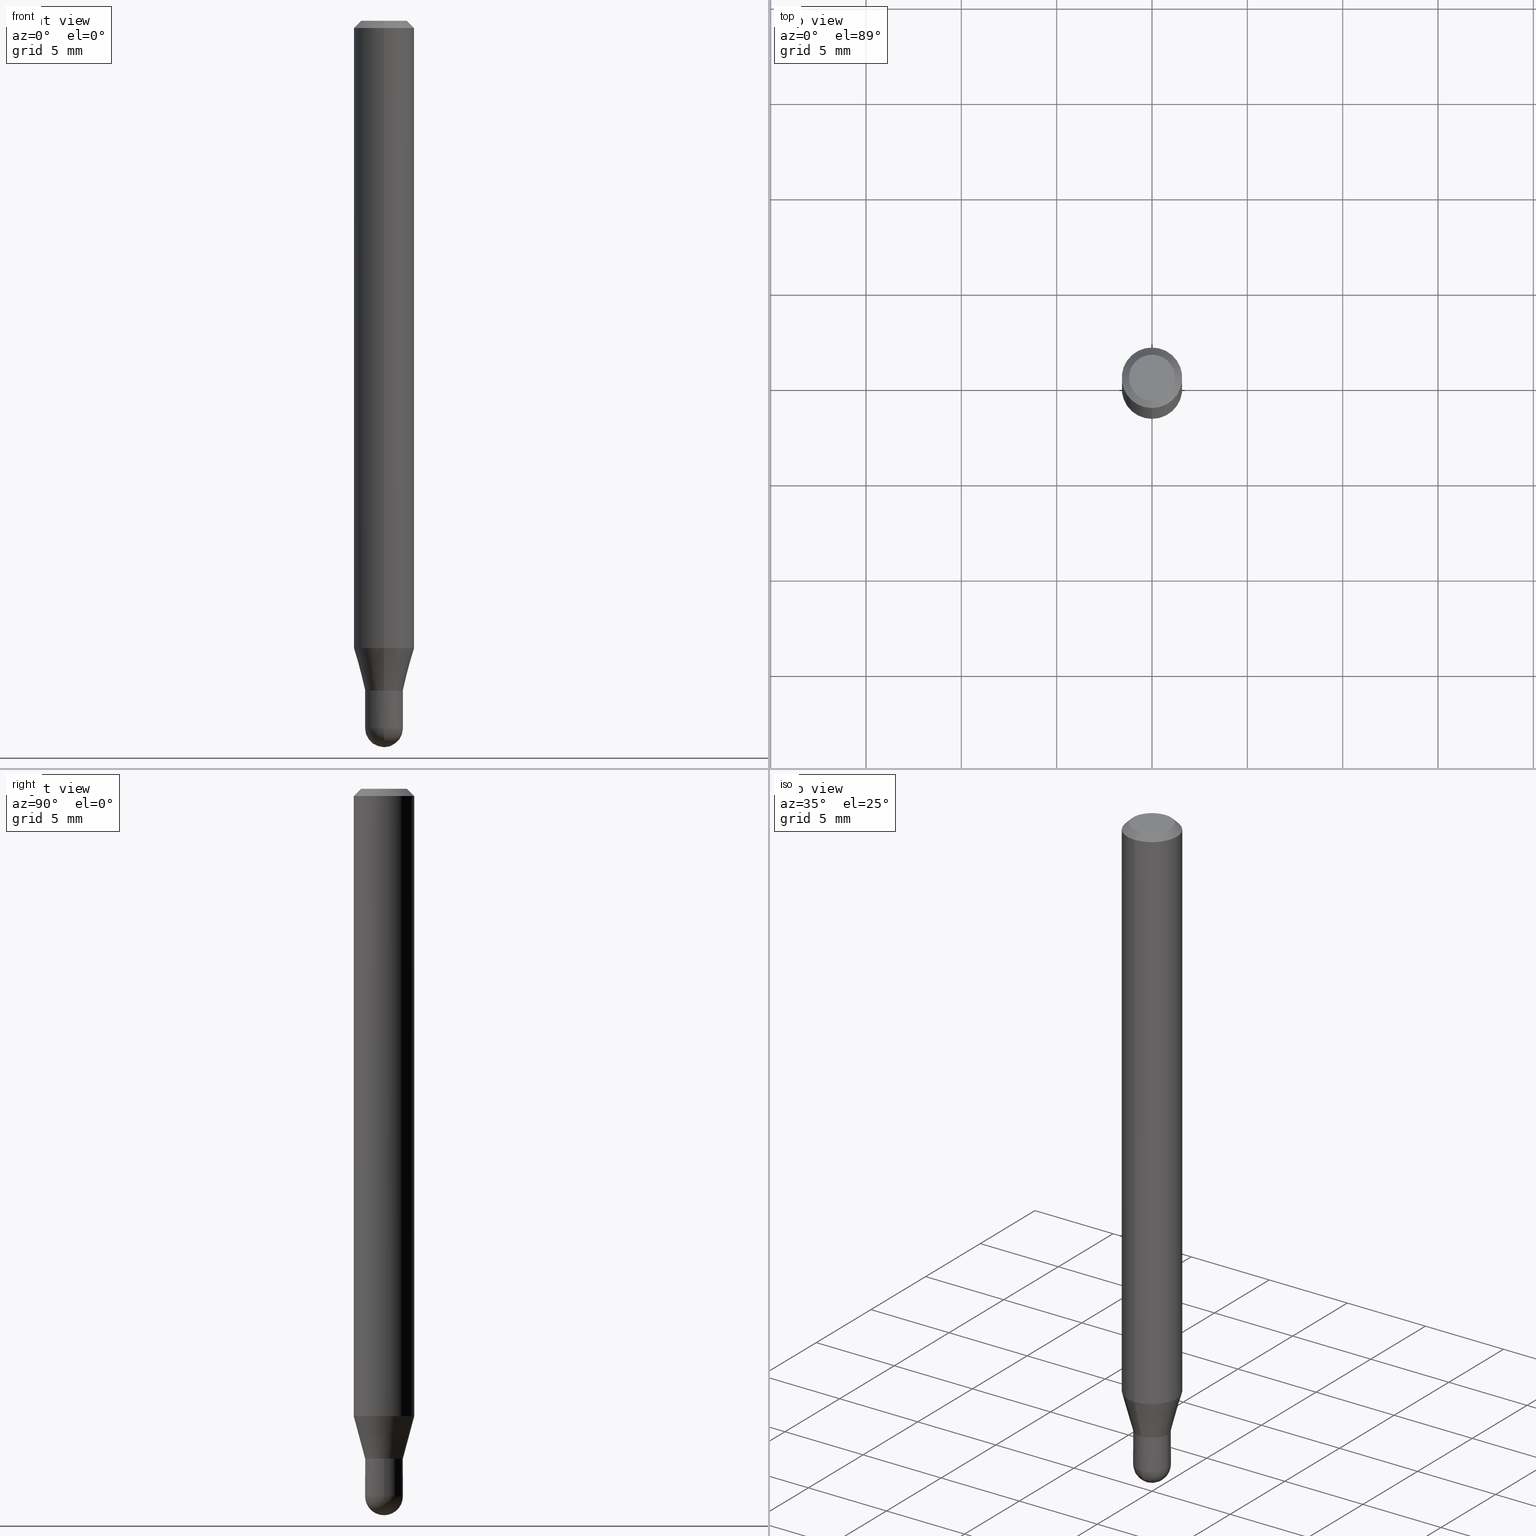
[diagram: canonical four-view strip — front | top / right | iso, engineering-drawing reading convention]
A machine part, canonical four-view strip (front | top / right | iso — engineering-drawing reading convention). The complete STEP part file that produces these views, byte-faithful:
ISO-10303-21;
HEADER;
FILE_DESCRIPTION (( 'STEP AP203' ),
    '1' );
FILE_NAME ('04377.STEP',
    '2024-03-08T18:59:59',
    ( '' ),
    ( '' ),
    'SwSTEP 2.0',
    'SolidWorks 2023',
    '' );
FILE_SCHEMA (( 'CONFIG_CONTROL_DESIGN' ));
ENDSEC;

DATA;
#1 = VERTEX_POINT ( 'NONE', #492 ) ;
#2 = FACE_OUTER_BOUND ( 'NONE', #42, .T. ) ;
#3 = ORIENTED_EDGE ( 'NONE', *, *, #65, .F. ) ;
#4 = FACE_OUTER_BOUND ( 'NONE', #135, .T. ) ;
#5 = EDGE_LOOP ( 'NONE', ( #332, #323 ) ) ;
#6 = ADVANCED_FACE ( 'NONE', ( #189 ), #215, .T. ) ;
#7 = AXIS2_PLACEMENT_3D ( 'NONE', #61, #223, #353 ) ;
#8 = AXIS2_PLACEMENT_3D ( 'NONE', #468, #373, #40 ) ;
#9 = ORIENTED_EDGE ( 'NONE', *, *, #438, .T. ) ;
#10 = ORIENTED_EDGE ( 'NONE', *, *, #75, .T. ) ;
#11 = ORIENTED_EDGE ( 'NONE', *, *, #314, .T. ) ;
#12 = CONICAL_SURFACE ( 'NONE', #39, 0.06250000000000000000, 0.7853981633974483900 ) ;
#13 = DATE_AND_TIME ( #141, #73 ) ;
#14 = DIRECTION ( 'NONE',  ( -2.445468806185136597E-29, 3.491481338843145583E-15, 1.000000000000000000 ) ) ;
#15 = DATE_TIME_ROLE ( 'creation_date' ) ;
#16 = DIRECTION ( 'NONE',  ( 2.438088387897960049E-29, -3.491481338843145188E-15, -1.000000000000000000 ) ) ;
#17 = EDGE_CURVE ( 'NONE', #44, #340, #382, .T. ) ;
#18 = MECHANICAL_CONTEXT ( 'NONE', #126, 'mechanical' ) ;
#19 = CARTESIAN_POINT ( 'NONE',  ( 4.440892098500939734E-16, 0.06249999999999544115, -1.295296806022135261 ) ) ;
#20 = FACE_OUTER_BOUND ( 'NONE', #81, .T. ) ;
#21 = CIRCLE ( 'NONE', #308, 0.03900000000000003464 ) ;
#22 = CARTESIAN_POINT ( 'NONE',  ( 0.03899999999999999994, -5.101054236049835376E-15, -1.383000000000000229 ) ) ;
#23 = DIRECTION ( 'NONE',  ( -6.982962677686265922E-15, -1.000000000000000000, 3.483106191921935554E-15 ) ) ;
#24 = LINE ( 'NONE', #188, #328 ) ;
#25 = CARTESIAN_POINT ( 'NONE',  ( 2.723355444297981413E-16, 0.03899999999999516354, -1.383000000000000229 ) ) ;
#26 = ADVANCED_BREP_SHAPE_REPRESENTATION ( '04377', ( #503, #506, #160 ), #71 ) ;
#27 = EDGE_CURVE ( 'NONE', #1, #325, #257, .T. ) ;
#28 = DIRECTION ( 'NONE',  ( 1.000000000000000000, -6.982962677686258033E-15, 0.000000000000000000 ) ) ;
#29 = FACE_OUTER_BOUND ( 'NONE', #281, .T. ) ;
#30 = AXIS2_PLACEMENT_3D ( 'NONE', #105, #143, #301 ) ;
#31 = PRODUCT ( '04377', '04377', '', ( #18 ) ) ;
#32 = DIRECTION ( 'NONE',  ( -2.445438854622252826E-29, 3.491524231185932081E-15, 1.000000000000000000 ) ) ;
#33 = ADVANCED_FACE ( 'NONE', ( #488 ), #59, .T. ) ;
#34 = DIRECTION ( 'NONE',  ( 6.982962677686265922E-15, 1.000000000000000000, -3.483106191921935554E-15 ) ) ;
#35 = EDGE_CURVE ( 'NONE', #205, #340, #259, .T. ) ;
#36 = DIRECTION ( 'NONE',  ( -6.982962677686266711E-15, -1.000000000000000000, 3.491524231185931687E-15 ) ) ;
#37 = AXIS2_PLACEMENT_3D ( 'NONE', #450, #182, #457 ) ;
#38 = ORIENTED_EDGE ( 'NONE', *, *, #438, .F. ) ;
#39 = AXIS2_PLACEMENT_3D ( 'NONE', #495, #498, #228 ) ;
#40 = DIRECTION ( 'NONE',  ( -6.982962677686266711E-15, -1.000000000000000000, 0.000000000000000000 ) ) ;
#41 = ADVANCED_FACE ( 'NONE', ( #264 ), #142, .T. ) ;
#42 = EDGE_LOOP ( 'NONE', ( #355, #118, #478, #99 ) ) ;
#43 = CARTESIAN_POINT ( 'NONE',  ( 3.569494777308684757E-29, -5.105830358566509883E-15, -1.461000000000000076 ) ) ;
#44 = VERTEX_POINT ( 'NONE', #19 ) ;
#45 = ORIENTED_EDGE ( 'NONE', *, *, #220, .T. ) ;
#46 = AXIS2_PLACEMENT_3D ( 'NONE', #310, #63, #299 ) ;
#47 = ORIENTED_EDGE ( 'NONE', *, *, #190, .F. ) ;
#48 = COORDINATED_UNIVERSAL_TIME_OFFSET ( 5, 0, .BEHIND. ) ;
#49 = ORIENTED_EDGE ( 'NONE', *, *, #220, .F. ) ;
#50 = ADVANCED_FACE ( 'NONE', ( #262 ), #419, .F. ) ;
#51 = EDGE_LOOP ( 'NONE', ( #285, #331, #128, #3 ) ) ;
#52 = COORDINATED_UNIVERSAL_TIME_OFFSET ( 5, 0, .BEHIND. ) ;
#53 = CARTESIAN_POINT ( 'NONE',  ( 0.000000000000000000, 0.000000000000000000, 0.000000000000000000 ) ) ;
#54 = AXIS2_PLACEMENT_3D ( 'NONE', #509, #273, #206 ) ;
#55 = PERSON_AND_ORGANIZATION_ROLE ( 'creator' ) ;
#56 = DIRECTION ( 'NONE',  ( -2.445438854622252826E-29, 3.491524231185932081E-15, 1.000000000000000000 ) ) ;
#57 = DESIGN_CONTEXT ( 'detailed design', #304, 'design' ) ;
#58 = CC_DESIGN_DATE_AND_TIME_ASSIGNMENT ( #13, #15, ( #230 ) ) ;
#59 = SPHERICAL_SURFACE ( 'NONE', #37, 0.03900000000000003464 ) ;
#60 = CARTESIAN_POINT ( 'NONE',  ( 3.382083358954044842E-29, -4.828718691620071353E-15, -1.383000000000000229 ) ) ;
#61 = CARTESIAN_POINT ( 'NONE',  ( 3.382041935942577567E-29, -4.828778011730146213E-15, -1.383000000000000451 ) ) ;
#62 = AXIS2_PLACEMENT_3D ( 'NONE', #266, #107, #222 ) ;
#63 = DIRECTION ( 'NONE',  ( -2.445438854622252826E-29, 3.491524231185932081E-15, 1.000000000000000000 ) ) ;
#64 = AXIS2_PLACEMENT_3D ( 'NONE', #25, #16, #496 ) ;
#65 = EDGE_CURVE ( 'NONE', #340, #172, #94, .T. ) ;
#66 = FACE_OUTER_BOUND ( 'NONE', #361, .T. ) ;
#67 = CC_DESIGN_PERSON_AND_ORGANIZATION_ASSIGNMENT ( #341, #136, ( #217 ) ) ;
#68 = DIRECTION ( 'NONE',  ( -2.445468806185136597E-29, 3.491481338843145583E-15, 1.000000000000000000 ) ) ;
#69 = EDGE_LOOP ( 'NONE', ( #411, #10 ) ) ;
#70 = VERTEX_POINT ( 'NONE', #137 ) ;
#71 =( GEOMETRIC_REPRESENTATION_CONTEXT ( 3 ) GLOBAL_UNCERTAINTY_ASSIGNED_CONTEXT ( ( #98 ) ) GLOBAL_UNIT_ASSIGNED_CONTEXT ( ( #76, #110, #149 ) ) REPRESENTATION_CONTEXT ( 'NONE', 'WORKASPACE' ) );
#72 = DIRECTION ( 'NONE',  ( -2.445438854622252826E-29, 3.491524231185932081E-15, 1.000000000000000000 ) ) ;
#73 = LOCAL_TIME ( 13, 59, 59.00000000000000000, #442 ) ;
#74 = CARTESIAN_POINT ( 'NONE',  ( 3.382041935942577567E-29, -4.828778011730146213E-15, -1.383000000000000451 ) ) ;
#75 = EDGE_CURVE ( 'NONE', #283, #205, #397, .T. ) ;
#76 =( CONVERSION_BASED_UNIT ( 'INCH', #274 ) LENGTH_UNIT ( ) NAMED_UNIT ( #165 ) );
#77 = ORIENTED_EDGE ( 'NONE', *, *, #424, .F. ) ;
#78 = AXIS2_PLACEMENT_3D ( 'NONE', #324, #280, #434 ) ;
#79 = ADVANCED_FACE ( 'NONE', ( #350 ), #446, .T. ) ;
#80 = DIRECTION ( 'NONE',  ( -2.445468806185136597E-29, 3.491481338843145583E-15, 1.000000000000000000 ) ) ;
#81 = EDGE_LOOP ( 'NONE', ( #47, #430, #335, #212 ) ) ;
#82 = APPROVAL ( #482, 'UNSPECIFIED' ) ;
#83 = DIRECTION ( 'NONE',  ( -1.807323732225382599E-15, -0.2588190451025256800, 0.9659258262890669799 ) ) ;
#84 = ORIENTED_EDGE ( 'NONE', *, *, #279, .T. ) ;
#85 = CARTESIAN_POINT ( 'NONE',  ( 3.380819216515265150E-29, -4.827032249614552558E-15, -1.382500000000000284 ) ) ;
#86 = DIRECTION ( 'NONE',  ( 1.000000000000000000, 0.000000000000000000, 0.000000000000000000 ) ) ;
#87 = ORIENTED_EDGE ( 'NONE', *, *, #17, .T. ) ;
#88 = CALENDAR_DATE ( 2024, 8, 3 ) ;
#89 = VERTEX_POINT ( 'NONE', #384 ) ;
#90 = EDGE_CURVE ( 'NONE', #172, #340, #365, .T. ) ;
#91 = ORIENTED_EDGE ( 'NONE', *, *, #314, .F. ) ;
#92 = ORIENTED_EDGE ( 'NONE', *, *, #75, .F. ) ;
#93 = CARTESIAN_POINT ( 'NONE',  ( 1.601718350350045308E-45, -2.286885407587181283E-31, -6.549819666611384391E-17 ) ) ;
#94 = CIRCLE ( 'NONE', #336, 0.06250000000000000000 ) ;
#95 = VECTOR ( 'NONE', #389, 39.37007874015748143 ) ;
#96 = CARTESIAN_POINT ( 'NONE',  ( 0.000000000000000000, 0.000000000000000000, 0.000000000000000000 ) ) ;
#97 = DIRECTION ( 'NONE',  ( -2.445468806185136597E-29, 3.491481338843145583E-15, 1.000000000000000000 ) ) ;
#98 = UNCERTAINTY_MEASURE_WITH_UNIT (LENGTH_MEASURE( 1.000000000000000082E-05 ), #76, 'distance_accuracy_value', 'NONE');
#99 = ORIENTED_EDGE ( 'NONE', *, *, #277, .F. ) ;
#100 = CARTESIAN_POINT ( 'NONE',  ( 3.380819216515265150E-29, -4.827032249614552558E-15, -1.382500000000000284 ) ) ;
#101 = DIRECTION ( 'NONE',  ( -2.445438854622252826E-29, 3.491524231185932081E-15, 1.000000000000000000 ) ) ;
#102 = DIRECTION ( 'NONE',  ( 2.445438854622252545E-29, -3.491524231185932081E-15, -1.000000000000000000 ) ) ;
#103 = APPROVAL ( #415, 'UNSPECIFIED' ) ;
#104 = ADVANCED_FACE ( 'NONE', ( #303 ), #453, .F. ) ;
#105 = CARTESIAN_POINT ( 'NONE',  ( 0.000000000000000000, 0.000000000000000000, 0.000000000000000000 ) ) ;
#106 = AXIS2_PLACEMENT_3D ( 'NONE', #396, #512, #36 ) ;
#107 = DIRECTION ( 'NONE',  ( -2.445438854622252826E-29, 3.491524231185932081E-15, 1.000000000000000000 ) ) ;
#108 = LINE ( 'NONE', #267, #490 ) ;
#109 = CC_DESIGN_PERSON_AND_ORGANIZATION_ASSIGNMENT ( #378, #177, ( #217 ) ) ;
#110 =( NAMED_UNIT ( * ) PLANE_ANGLE_UNIT ( ) SI_UNIT ( $, .RADIAN. ) );
#111 = DIRECTION ( 'NONE',  ( -6.982962677686266711E-15, -1.000000000000000000, 0.000000000000000000 ) ) ;
#112 = CARTESIAN_POINT ( 'NONE',  ( -4.364351673553912750E-16, -0.06250000000000005551, -0.01499999999999984852 ) ) ;
#113 = CC_DESIGN_PERSON_AND_ORGANIZATION_ASSIGNMENT ( #296, #170, ( #175 ) ) ;
#114 = VECTOR ( 'NONE', #297, 39.37007874015748143 ) ;
#115 = EDGE_CURVE ( 'NONE', #500, #269, #148, .T. ) ;
#116 = AXIS2_PLACEMENT_3D ( 'NONE', #359, #145, #154 ) ;
#117 = DIRECTION ( 'NONE',  ( 7.105427357600999492E-15, 1.000000000000000000, 0.000000000000000000 ) ) ;
#118 = ORIENTED_EDGE ( 'NONE', *, *, #364, .T. ) ;
#119 = FACE_OUTER_BOUND ( 'NONE', #402, .T. ) ;
#120 = CARTESIAN_POINT ( 'NONE',  ( 3.382041935942576446E-29, -4.828778011730144635E-15, -1.383000000000000007 ) ) ;
#121 = DIRECTION ( 'NONE',  ( -1.000000000000000000, 6.982962677686265922E-15, -4.883557194083112340E-29 ) ) ;
#122 = ORIENTED_EDGE ( 'NONE', *, *, #475, .F. ) ;
#123 = AXIS2_PLACEMENT_3D ( 'NONE', #436, #370, #34 ) ;
#124 = DIRECTION ( 'NONE',  ( -6.982962677686266711E-15, -1.000000000000000000, 3.491524231185932476E-15 ) ) ;
#125 = ORIENTED_EDGE ( 'NONE', *, *, #129, .F. ) ;
#126 = APPLICATION_CONTEXT ( 'configuration controlled 3d designs of mechanical parts and assemblies' ) ;
#127 = EDGE_CURVE ( 'NONE', #480, #166, #108, .T. ) ;
#128 = ORIENTED_EDGE ( 'NONE', *, *, #129, .T. ) ;
#129 = EDGE_CURVE ( 'NONE', #176, #172, #381, .T. ) ;
#130 = PERSON_AND_ORGANIZATION ( #417, #440 ) ;
#131 = ORIENTED_EDGE ( 'NONE', *, *, #187, .T. ) ;
#132 = AXIS2_PLACEMENT_3D ( 'NONE', #100, #226, #231 ) ;
#133 = ORIENTED_EDGE ( 'NONE', *, *, #364, .F. ) ;
#134 = DATE_AND_TIME ( #214, #309 ) ;
#135 = EDGE_LOOP ( 'NONE', ( #207, #155, #437, #245 ) ) ;
#136 = PERSON_AND_ORGANIZATION_ROLE ( 'design_supplier' ) ;
#137 = CARTESIAN_POINT ( 'NONE',  ( 3.663200486486005276E-29, -5.244386192039729937E-15, -1.500000000000000222 ) ) ;
#138 = CARTESIAN_POINT ( 'NONE',  ( -4.364351673553916201E-16, -0.06250000000000000000, 2.182202644491207551E-16 ) ) ;
#139 = CIRCLE ( 'NONE', #491, 0.03899999999999999994 ) ;
#140 = CARTESIAN_POINT ( 'NONE',  ( -2.688440630908873907E-16, -0.03850000000000482897, -1.383000000000000451 ) ) ;
#141 = CALENDAR_DATE ( 2024, 8, 3 ) ;
#142 = CYLINDRICAL_SURFACE ( 'NONE', #327, 0.03899999999999999994 ) ;
#143 = DIRECTION ( 'NONE',  ( -2.445438854622252826E-29, 3.491524231185932081E-15, 1.000000000000000000 ) ) ;
#144 = ADVANCED_FACE ( 'NONE', ( #305 ), #462, .T. ) ;
#145 = DIRECTION ( 'NONE',  ( -2.445438854622252826E-29, 3.491524231185932081E-15, 1.000000000000000000 ) ) ;
#146 = CARTESIAN_POINT ( 'NONE',  ( 3.668158281933395686E-31, -5.237286346778921122E-17, -0.01500000000000006710 ) ) ;
#147 = CARTESIAN_POINT ( 'NONE',  ( 3.382041935942577567E-29, -4.828778011730146213E-15, -1.383000000000000451 ) ) ;
#148 = LINE ( 'NONE', #306, #208 ) ;
#149 =( NAMED_UNIT ( * ) SI_UNIT ( $, .STERADIAN. ) SOLID_ANGLE_UNIT ( ) );
#150 = AXIS2_PLACEMENT_3D ( 'NONE', #242, #401, #451 ) ;
#151 = LOCAL_TIME ( 13, 59, 59.00000000000000000, #48 ) ;
#152 = CARTESIAN_POINT ( 'NONE',  ( 3.382083358954044842E-29, -4.828718691620071353E-15, -1.383000000000000229 ) ) ;
#153 = ORIENTED_EDGE ( 'NONE', *, *, #511, .T. ) ;
#154 = DIRECTION ( 'NONE',  ( -6.982962677686266711E-15, -1.000000000000000000, 0.000000000000000000 ) ) ;
#155 = ORIENTED_EDGE ( 'NONE', *, *, #454, .T. ) ;
#156 = PLANE ( 'NONE',  #258 ) ;
#157 =( LENGTH_UNIT ( ) NAMED_UNIT ( * ) SI_UNIT ( $, .METRE. ) );
#158 = AXIS2_PLACEMENT_3D ( 'NONE', #456, #421, #349 ) ;
#159 = CARTESIAN_POINT ( 'NONE',  ( 1.601718350350045308E-45, -2.286885407587181283E-31, -6.549819666611384391E-17 ) ) ;
#160 = AXIS2_PLACEMENT_3D ( 'NONE', #96, #334, #86 ) ;
#161 = DIRECTION ( 'NONE',  ( -2.445438854622252545E-29, 3.491524231185932081E-15, 1.000000000000000000 ) ) ;
#162 = DIRECTION ( 'NONE',  ( -6.982962677686264344E-15, -1.000000000000000000, 0.000000000000000000 ) ) ;
#163 = SPHERICAL_SURFACE ( 'NONE', #78, 0.03900000000000003464 ) ;
#164 = ORIENTED_EDGE ( 'NONE', *, *, #511, .F. ) ;
#165 = DIMENSIONAL_EXPONENTS ( 1.000000000000000000, 0.000000000000000000, 0.000000000000000000, 0.000000000000000000, 0.000000000000000000, 0.000000000000000000, 0.000000000000000000 ) ;
#166 = VERTEX_POINT ( 'NONE', #449 ) ;
#167 = EDGE_CURVE ( 'NONE', #1, #203, #395, .T. ) ;
#168 = ADVANCED_FACE ( 'NONE', ( #425 ), #352, .T. ) ;
#169 = ORIENTED_EDGE ( 'NONE', *, *, #368, .F. ) ;
#170 = PERSON_AND_ORGANIZATION_ROLE ( 'classification_officer' ) ;
#171 = EDGE_CURVE ( 'NONE', #269, #89, #184, .T. ) ;
#172 = VERTEX_POINT ( 'NONE', #112 ) ;
#173 = EDGE_LOOP ( 'NONE', ( #38, #211, #169, #410 ) ) ;
#174 = VECTOR ( 'NONE', #83, 39.37007874015748143 ) ;
#175 = SECURITY_CLASSIFICATION ( '', '', #293 ) ;
#176 = VERTEX_POINT ( 'NONE', #427 ) ;
#177 = PERSON_AND_ORGANIZATION_ROLE ( 'creator' ) ;
#178 = CARTESIAN_POINT ( 'NONE',  ( 3.316907271900976096E-16, 0.04749999999999999362, -1.985964993143886630E-16 ) ) ;
#179 = EDGE_CURVE ( 'NONE', #375, #252, #372, .T. ) ;
#180 = APPROVAL_ROLE ( '' ) ;
#181 = CARTESIAN_POINT ( 'NONE',  ( 4.364351673553919652E-16, 0.06249999999999995143, -0.01500000000000028394 ) ) ;
#182 = DIRECTION ( 'NONE',  ( 1.000000000000000000, -6.982962677686265922E-15, 4.883557194083112901E-29 ) ) ;
#183 = AXIS2_PLACEMENT_3D ( 'NONE', #270, #72, #302 ) ;
#184 = CIRCLE ( 'NONE', #248, 0.03899999999999999994 ) ;
#185 = DIRECTION ( 'NONE',  ( 1.000000000000000000, -6.982962677686258033E-15, 0.000000000000000000 ) ) ;
#186 = DIRECTION ( 'NONE',  ( -2.445438854622252826E-29, 3.491524231185932081E-15, 1.000000000000000000 ) ) ;
#187 = EDGE_CURVE ( 'NONE', #435, #500, #209, .T. ) ;
#188 = CARTESIAN_POINT ( 'NONE',  ( 2.771116669464742257E-16, 0.03899999999999536476, -1.383000000000000007 ) ) ;
#189 = FACE_OUTER_BOUND ( 'NONE', #483, .T. ) ;
#190 = EDGE_CURVE ( 'NONE', #325, #166, #452, .T. ) ;
#191 = DIRECTION ( 'NONE',  ( -2.445468806185136597E-29, 3.491481338843145583E-15, 1.000000000000000000 ) ) ;
#192 = DIRECTION ( 'NONE',  ( -6.982962677686265922E-15, -1.000000000000000000, 3.491524231185932081E-15 ) ) ;
#193 = CIRCLE ( 'NONE', #298, 0.03900000000000019423 ) ;
#194 = CARTESIAN_POINT ( 'NONE',  ( 3.606004383982843954E-16, 0.03899999999999536476, -1.383000000000000007 ) ) ;
#195 = ORIENTED_EDGE ( 'NONE', *, *, #171, .F. ) ;
#196 = CARTESIAN_POINT ( 'NONE',  ( 3.572829925836484317E-29, -5.101054236049835376E-15, -1.461000000000000076 ) ) ;
#197 = LINE ( 'NONE', #399, #174 ) ;
#198 = APPROVAL_ROLE ( '' ) ;
#199 = AXIS2_PLACEMENT_3D ( 'NONE', #159, #319, #124 ) ;
#200 = DIRECTION ( 'NONE',  ( 1.000000000000000000, -6.982962677686258033E-15, 0.000000000000000000 ) ) ;
#201 = ORIENTED_EDGE ( 'NONE', *, *, #179, .T. ) ;
#202 = FACE_OUTER_BOUND ( 'NONE', #254, .T. ) ;
#203 = VERTEX_POINT ( 'NONE', #236 ) ;
#204 = FACE_OUTER_BOUND ( 'NONE', #295, .T. ) ;
#205 = VERTEX_POINT ( 'NONE', #387 ) ;
#206 = DIRECTION ( 'NONE',  ( -6.982962677686266711E-15, -1.000000000000000000, 0.000000000000000000 ) ) ;
#207 = ORIENTED_EDGE ( 'NONE', *, *, #127, .F. ) ;
#208 = VECTOR ( 'NONE', #416, 39.37007874015748143 ) ;
#209 = CIRCLE ( 'NONE', #423, 0.03899999999999999994 ) ;
#210 = APPROVAL ( #316, 'UNSPECIFIED' ) ;
#211 = ORIENTED_EDGE ( 'NONE', *, *, #405, .T. ) ;
#212 = ORIENTED_EDGE ( 'NONE', *, *, #475, .T. ) ;
#213 = ORIENTED_EDGE ( 'NONE', *, *, #171, .T. ) ;
#214 = CALENDAR_DATE ( 2024, 8, 3 ) ;
#215 = CYLINDRICAL_SURFACE ( 'NONE', #455, 0.03899999999999999994 ) ;
#216 = VECTOR ( 'NONE', #261, 39.37007874015748143 ) ;
#217 = PRODUCT_DEFINITION_FORMATION_WITH_SPECIFIED_SOURCE ( 'ANY', '', #31, .NOT_KNOWN. ) ;
#218 = DIRECTION ( 'NONE',  ( 5.024295867788190974E-15, 0.7071067811865681119, 0.7071067811865270336 ) ) ;
#219 = CARTESIAN_POINT ( 'NONE',  ( 0.000000000000000000, 0.000000000000000000, 0.000000000000000000 ) ) ;
#220 = EDGE_CURVE ( 'NONE', #176, #44, #398, .T. ) ;
#221 = ORIENTED_EDGE ( 'NONE', *, *, #253, .F. ) ;
#222 = DIRECTION ( 'NONE',  ( -6.982962677686265922E-15, -1.000000000000000000, 4.370956789862821150E-15 ) ) ;
#223 = DIRECTION ( 'NONE',  ( -2.445438854622252826E-29, 3.491524231185932081E-15, 1.000000000000000000 ) ) ;
#224 = AXIS2_PLACEMENT_3D ( 'NONE', #120, #329, #473 ) ;
#225 = CC_DESIGN_APPROVAL ( #210, ( #175 ) ) ;
#226 = DIRECTION ( 'NONE',  ( -2.445438854622252826E-29, 3.491524231185932081E-15, 1.000000000000000000 ) ) ;
#227 = CARTESIAN_POINT ( 'NONE',  ( 3.668158281933395686E-31, -5.237286346778921122E-17, -0.01500000000000006710 ) ) ;
#228 = DIRECTION ( 'NONE',  ( 6.982962677686265922E-15, 1.000000000000000000, -3.483106191921935554E-15 ) ) ;
#229 = APPLICATION_PROTOCOL_DEFINITION ( 'international standard', 'config_control_design', 1994, #126 ) ;
#230 = PRODUCT_DEFINITION ( 'UNKNOWN', '', #217, #57 ) ;
#231 = DIRECTION ( 'NONE',  ( -6.982962677686266711E-15, -1.000000000000000000, 0.000000000000000000 ) ) ;
#232 = ORIENTED_EDGE ( 'NONE', *, *, #90, .T. ) ;
#233 = ORIENTED_EDGE ( 'NONE', *, *, #326, .T. ) ;
#234 = AXIS2_PLACEMENT_3D ( 'NONE', #467, #80, #244 ) ;
#235 = CLOSED_SHELL ( 'NONE', ( #426, #79, #246, #144, #318, #466, #168, #391, #50, #493, #351, #489 ) ) ;
#236 = CARTESIAN_POINT ( 'NONE',  ( -2.723355444297328631E-16, -0.03900000000000516248, -1.382500000000000284 ) ) ;
#237 = AXIS2_PLACEMENT_3D ( 'NONE', #445, #379, #486 ) ;
#238 = CIRCLE ( 'NONE', #8, 0.03849999999999999256 ) ;
#239 = CARTESIAN_POINT ( 'NONE',  ( 3.569494777308684757E-29, -5.105830358566509883E-15, -1.461000000000000076 ) ) ;
#240 = CC_DESIGN_APPROVAL ( #82, ( #217 ) ) ;
#241 = ORIENTED_EDGE ( 'NONE', *, *, #405, .F. ) ;
#242 = CARTESIAN_POINT ( 'NONE',  ( 3.382041935942576446E-29, -4.828778011730144635E-15, -1.383000000000000007 ) ) ;
#243 = ORIENTED_EDGE ( 'NONE', *, *, #179, .F. ) ;
#244 = DIRECTION ( 'NONE',  ( 1.000000000000000000, -6.982962677686258033E-15, 0.000000000000000000 ) ) ;
#245 = ORIENTED_EDGE ( 'NONE', *, *, #307, .F. ) ;
#246 = ADVANCED_FACE ( 'NONE', ( #66 ), #12, .T. ) ;
#247 = ORIENTED_EDGE ( 'NONE', *, *, #307, .T. ) ;
#248 = AXIS2_PLACEMENT_3D ( 'NONE', #60, #362, #390 ) ;
#249 = ORIENTED_EDGE ( 'NONE', *, *, #408, .F. ) ;
#250 = CYLINDRICAL_SURFACE ( 'NONE', #30, 0.03900000000000019423 ) ;
#251 = PERSON_AND_ORGANIZATION ( #417, #440 ) ;
#252 = VERTEX_POINT ( 'NONE', #263 ) ;
#253 = EDGE_CURVE ( 'NONE', #89, #269, #139, .T. ) ;
#254 = EDGE_LOOP ( 'NONE', ( #241, #9, #77, #243 ) ) ;
#255 = CC_DESIGN_PERSON_AND_ORGANIZATION_ASSIGNMENT ( #251, #55, ( #230 ) ) ;
#256 = DIRECTION ( 'NONE',  ( -6.982962677686266711E-15, -1.000000000000000000, 3.491524231185932476E-15 ) ) ;
#257 = CIRCLE ( 'NONE', #237, 0.03900000000000019423 ) ;
#258 = AXIS2_PLACEMENT_3D ( 'NONE', #74, #161, #192 ) ;
#259 = LINE ( 'NONE', #181, #286 ) ;
#260 = CARTESIAN_POINT ( 'NONE',  ( 2.753353101070732341E-16, 0.03849999999999516309, -1.383000000000000451 ) ) ;
#261 = DIRECTION ( 'NONE',  ( -2.445468806185136877E-29, 3.491481338843145188E-15, 1.000000000000000000 ) ) ;
#262 = FACE_OUTER_BOUND ( 'NONE', #69, .T. ) ;
#263 = CARTESIAN_POINT ( 'NONE',  ( -0.03899999999999999994, -4.687774796888514046E-15, -1.461000000000000076 ) ) ;
#264 = FACE_OUTER_BOUND ( 'NONE', #338, .T. ) ;
#265 = AXIS2_PLACEMENT_3D ( 'NONE', #147, #460, #111 ) ;
#266 = CARTESIAN_POINT ( 'NONE',  ( 3.167569137714632415E-29, -4.522560184804029435E-15, -1.295296806022135039 ) ) ;
#267 = CARTESIAN_POINT ( 'NONE',  ( 2.735589532676723411E-16, 0.03849999999999516309, -1.383000000000000451 ) ) ;
#268 = CARTESIAN_POINT ( 'NONE',  ( -3.773273898774340269E-16, -0.04749999999999999362, 1.003492043152179280E-16 ) ) ;
#269 = VERTEX_POINT ( 'NONE', #22 ) ;
#270 = CARTESIAN_POINT ( 'NONE',  ( 0.000000000000000000, 0.000000000000000000, 0.000000000000000000 ) ) ;
#271 = SHAPE_DEFINITION_REPRESENTATION ( #472, #26 ) ;
#272 = CONICAL_SURFACE ( 'NONE', #150, 0.03900000000000019423, 0.2617993877991580121 ) ;
#273 = DIRECTION ( 'NONE',  ( -2.445438854622252826E-29, 3.491524231185932081E-15, 1.000000000000000000 ) ) ;
#274 = LENGTH_MEASURE_WITH_UNIT ( LENGTH_MEASURE( 0.02539999999999999897 ), #157 );
#275 = CARTESIAN_POINT ( 'NONE',  ( 2.771116669464748174E-16, 0.03899999999999490680, -1.461000000000000076 ) ) ;
#276 = COORDINATED_UNIVERSAL_TIME_OFFSET ( 5, 0, .BEHIND. ) ;
#277 = EDGE_CURVE ( 'NONE', #44, #176, #414, .T. ) ;
#278 = CARTESIAN_POINT ( 'NONE',  ( 0.03899999999999999994, -5.237222008264717388E-15, -1.461000000000000076 ) ) ;
#279 = EDGE_CURVE ( 'NONE', #471, #480, #366, .T. ) ;
#280 = DIRECTION ( 'NONE',  ( 1.000000000000000000, -6.982962677686265922E-15, 4.883557194083112901E-29 ) ) ;
#281 = EDGE_LOOP ( 'NONE', ( #448, #233, #49, #249 ) ) ;
#282 = CARTESIAN_POINT ( 'NONE',  ( 3.572829925836484317E-29, -5.101054236049835376E-15, -1.461000000000000076 ) ) ;
#283 = VERTEX_POINT ( 'NONE', #268 ) ;
#284 = ORIENTED_EDGE ( 'NONE', *, *, #35, .F. ) ;
#285 = ORIENTED_EDGE ( 'NONE', *, *, #17, .F. ) ;
#286 = VECTOR ( 'NONE', #344, 39.37007874015748143 ) ;
#287 = CIRCLE ( 'NONE', #465, 0.03899999999999999994 ) ;
#288 = APPROVAL_ROLE ( '' ) ;
#289 = ORIENTED_EDGE ( 'NONE', *, *, #167, .F. ) ;
#290 = AXIS2_PLACEMENT_3D ( 'NONE', #146, #56, #23 ) ;
#291 = DATE_AND_TIME ( #88, #151 ) ;
#292 = ORIENTED_EDGE ( 'NONE', *, *, #368, .T. ) ;
#293 = SECURITY_CLASSIFICATION_LEVEL ( 'unclassified' ) ;
#294 = DIRECTION ( 'NONE',  ( -2.445438854622252826E-29, 3.491524231185932081E-15, 1.000000000000000000 ) ) ;
#295 = EDGE_LOOP ( 'NONE', ( #164, #443, #441, #374 ) ) ;
#296 = PERSON_AND_ORGANIZATION ( #417, #440 ) ;
#297 = DIRECTION ( 'NONE',  ( -2.445438854622252826E-29, 3.491524231185932081E-15, 1.000000000000000000 ) ) ;
#298 = AXIS2_PLACEMENT_3D ( 'NONE', #85, #333, #479 ) ;
#299 = DIRECTION ( 'NONE',  ( -6.982962677686265922E-15, -1.000000000000000000, 4.370956789862821150E-15 ) ) ;
#300 = CARTESIAN_POINT ( 'NONE',  ( 4.440892098500625669E-16, 0.06250000000000000000, -2.182202644491207551E-16 ) ) ;
#301 = DIRECTION ( 'NONE',  ( -6.982962677686266711E-15, -1.000000000000000000, 3.491524231185931687E-15 ) ) ;
#302 = DIRECTION ( 'NONE',  ( -6.982962677686265922E-15, -1.000000000000000000, 3.491524231185932081E-15 ) ) ;
#303 = FACE_OUTER_BOUND ( 'NONE', #369, .T. ) ;
#304 = APPLICATION_CONTEXT ( 'configuration controlled 3d designs of mechanical parts and assemblies' ) ;
#305 = FACE_OUTER_BOUND ( 'NONE', #505, .T. ) ;
#306 = CARTESIAN_POINT ( 'NONE',  ( 0.03899999999999999994, -2.723355444297643682E-16, 1.901708942560414931E-30 ) ) ;
#307 = EDGE_CURVE ( 'NONE', #166, #203, #337, .T. ) ;
#308 = AXIS2_PLACEMENT_3D ( 'NONE', #239, #315, #117 ) ;
#309 = LOCAL_TIME ( 13, 59, 59.00000000000000000, #52 ) ;
#310 = CARTESIAN_POINT ( 'NONE',  ( 3.167569137714632415E-29, -4.522560184804029435E-15, -1.295296806022135039 ) ) ;
#311 = ORIENTED_EDGE ( 'NONE', *, *, #90, .F. ) ;
#312 = CARTESIAN_POINT ( 'NONE',  ( 4.440892098500944664E-16, 0.06249999999999995143, -0.01500000000000028394 ) ) ;
#313 = PERSON_AND_ORGANIZATION ( #417, #440 ) ;
#314 = EDGE_CURVE ( 'NONE', #252, #89, #392, .T. ) ;
#315 = DIRECTION ( 'NONE',  ( 1.000000000000000000, -7.105427357601001070E-15, 4.926315508542082329E-29 ) ) ;
#316 = APPROVAL_STATUS ( 'not_yet_approved' ) ;
#317 = CIRCLE ( 'NONE', #224, 0.03900000000000019423 ) ;
#318 = ADVANCED_FACE ( 'NONE', ( #29 ), #499, .T. ) ;
#319 = DIRECTION ( 'NONE',  ( -2.445438854622252826E-29, 3.491524231185932081E-15, 1.000000000000000000 ) ) ;
#320 = DATE_TIME_ROLE ( 'classification_date' ) ;
#321 = DIRECTION ( 'NONE',  ( -2.445468806185136597E-29, 3.491481338843145583E-15, 1.000000000000000000 ) ) ;
#322 = COORDINATED_UNIVERSAL_TIME_OFFSET ( 5, 0, .BEHIND. ) ;
#323 = ORIENTED_EDGE ( 'NONE', *, *, #454, .F. ) ;
#324 = CARTESIAN_POINT ( 'NONE',  ( 3.569494777308684757E-29, -5.105830358566509883E-15, -1.461000000000000076 ) ) ;
#325 = VERTEX_POINT ( 'NONE', #194 ) ;
#326 = EDGE_CURVE ( 'NONE', #325, #44, #24, .T. ) ;
#327 = AXIS2_PLACEMENT_3D ( 'NONE', #53, #14, #447 ) ;
#328 = VECTOR ( 'NONE', #502, 39.37007874015748143 ) ;
#329 = DIRECTION ( 'NONE',  ( -2.445438854622252826E-29, 3.491524231185932081E-15, 1.000000000000000000 ) ) ;
#330 = APPROVAL_PERSON_ORGANIZATION ( #313, #210, #198 ) ;
#331 = ORIENTED_EDGE ( 'NONE', *, *, #277, .T. ) ;
#332 = ORIENTED_EDGE ( 'NONE', *, *, #279, .F. ) ;
#333 = DIRECTION ( 'NONE',  ( -2.445438854622252826E-29, 3.491524231185932081E-15, 1.000000000000000000 ) ) ;
#334 = DIRECTION ( 'NONE',  ( 0.000000000000000000, 0.000000000000000000, 1.000000000000000000 ) ) ;
#335 = ORIENTED_EDGE ( 'NONE', *, *, #167, .T. ) ;
#336 = AXIS2_PLACEMENT_3D ( 'NONE', #227, #422, #388 ) ;
#337 = CIRCLE ( 'NONE', #132, 0.03900000000000019423 ) ;
#338 = EDGE_LOOP ( 'NONE', ( #201, #11, #195, #376, #292 ) ) ;
#339 = CC_DESIGN_APPROVAL ( #103, ( #230 ) ) ;
#340 = VERTEX_POINT ( 'NONE', #312 ) ;
#341 = PERSON_AND_ORGANIZATION ( #417, #440 ) ;
#342 = DIRECTION ( 'NONE',  ( 1.000000000000000000, -6.982962677686265922E-15, 4.876176775795935793E-29 ) ) ;
#343 = APPLICATION_PROTOCOL_DEFINITION ( 'international standard', 'config_control_design', 1994, #304 ) ;
#344 = DIRECTION ( 'NONE',  ( 4.937700262164548042E-15, 0.7071067811865451302, -0.7071067811865499042 ) ) ;
#345 = AXIS2_PLACEMENT_3D ( 'NONE', #178, #102, #347 ) ;
#346 = APPROVAL_DATE_TIME ( #291, #103 ) ;
#347 = DIRECTION ( 'NONE',  ( 6.982962677686265922E-15, 1.000000000000000000, -3.491524231185932081E-15 ) ) ;
#348 = CIRCLE ( 'NONE', #458, 0.03900000000000003464 ) ;
#349 = DIRECTION ( 'NONE',  ( -6.982962677686265922E-15, -1.000000000000000000, 3.491524231185932081E-15 ) ) ;
#350 = FACE_OUTER_BOUND ( 'NONE', #474, .T. ) ;
#351 = ADVANCED_FACE ( 'NONE', ( #4 ), #377, .T. ) ;
#352 = CYLINDRICAL_SURFACE ( 'NONE', #158, 0.06250000000000000000 ) ;
#353 = DIRECTION ( 'NONE',  ( -6.982962677686266711E-15, -1.000000000000000000, 0.000000000000000000 ) ) ;
#354 = CARTESIAN_POINT ( 'NONE',  ( 2.771116669464404033E-16, 0.03900000000000019423, -1.361694450162520170E-16 ) ) ;
#355 = ORIENTED_EDGE ( 'NONE', *, *, #326, .F. ) ;
#356 = CIRCLE ( 'NONE', #199, 0.04749999999999999362 ) ;
#357 = CARTESIAN_POINT ( 'NONE',  ( -4.287811248607203282E-16, -0.06250000000000005551, -0.01499999999999984852 ) ) ;
#358 = CC_DESIGN_SECURITY_CLASSIFICATION ( #175, ( #217 ) ) ;
#359 = CARTESIAN_POINT ( 'NONE',  ( 3.382041935942576446E-29, -4.828778011730144635E-15, -1.383000000000000007 ) ) ;
#360 = EDGE_CURVE ( 'NONE', #205, #283, #356, .T. ) ;
#361 = EDGE_LOOP ( 'NONE', ( #92, #153, #232, #284 ) ) ;
#362 = DIRECTION ( 'NONE',  ( -2.445468806185136597E-29, 3.491481338843145583E-15, 1.000000000000000000 ) ) ;
#363 = DIRECTION ( 'NONE',  ( -4.851104656540964275E-15, -0.7071067811865500152, -0.7071067811865450192 ) ) ;
#364 = EDGE_CURVE ( 'NONE', #325, #1, #317, .T. ) ;
#365 = CIRCLE ( 'NONE', #290, 0.06250000000000000000 ) ;
#366 = CIRCLE ( 'NONE', #265, 0.03849999999999999256 ) ;
#367 = CLOSED_SHELL ( 'NONE', ( #41, #33, #104, #461, #6 ) ) ;
#368 = EDGE_CURVE ( 'NONE', #500, #375, #287, .T. ) ;
#369 = EDGE_LOOP ( 'NONE', ( #213, #400 ) ) ;
#370 = DIRECTION ( 'NONE',  ( 2.445438854622252826E-29, -3.491524231185932081E-15, -1.000000000000000000 ) ) ;
#371 = ORIENTED_EDGE ( 'NONE', *, *, #115, .T. ) ;
#372 = CIRCLE ( 'NONE', #385, 0.03899999999999999994 ) ;
#373 = DIRECTION ( 'NONE',  ( -2.445438854622252826E-29, 3.491524231185932081E-15, 1.000000000000000000 ) ) ;
#374 = ORIENTED_EDGE ( 'NONE', *, *, #65, .T. ) ;
#375 = VERTEX_POINT ( 'NONE', #275 ) ;
#376 = ORIENTED_EDGE ( 'NONE', *, *, #115, .F. ) ;
#377 = CONICAL_SURFACE ( 'NONE', #54, 0.03849999999999999256, 0.7853981633974739252 ) ;
#378 = PERSON_AND_ORGANIZATION ( #417, #440 ) ;
#379 = DIRECTION ( 'NONE',  ( -2.445438854622252826E-29, 3.491524231185932081E-15, 1.000000000000000000 ) ) ;
#380 = APPROVAL_PERSON_ORGANIZATION ( #409, #82, #180 ) ;
#381 = LINE ( 'NONE', #138, #114 ) ;
#382 = LINE ( 'NONE', #300, #420 ) ;
#383 = DIRECTION ( 'NONE',  ( 1.000000000000000000, -6.982962677686258033E-15, 0.000000000000000000 ) ) ;
#384 = CARTESIAN_POINT ( 'NONE',  ( -0.03899999999999999994, -4.687774796888514046E-15, -1.383000000000000229 ) ) ;
#385 = AXIS2_PLACEMENT_3D ( 'NONE', #196, #428, #28 ) ;
#386 = LOCAL_TIME ( 13, 59, 59.00000000000000000, #276 ) ;
#387 = CARTESIAN_POINT ( 'NONE',  ( 3.840629472727447874E-16, 0.04749999999999999362, -2.313455976474456528E-16 ) ) ;
#388 = DIRECTION ( 'NONE',  ( -6.982962677686265922E-15, -1.000000000000000000, 3.483106191921935554E-15 ) ) ;
#389 = DIRECTION ( 'NONE',  ( -4.937700262164674260E-15, -0.7071067811865632269, 0.7071067811865319186 ) ) ;
#390 = DIRECTION ( 'NONE',  ( 1.000000000000000000, -6.982962677686258033E-15, 0.000000000000000000 ) ) ;
#391 = ADVANCED_FACE ( 'NONE', ( #204 ), #481, .T. ) ;
#392 = LINE ( 'NONE', #494, #216 ) ;
#393 = VECTOR ( 'NONE', #363, 39.37007874015748143 ) ;
#394 = LOCAL_TIME ( 13, 59, 59.00000000000000000, #322 ) ;
#395 = LINE ( 'NONE', #418, #406 ) ;
#396 = CARTESIAN_POINT ( 'NONE',  ( 0.000000000000000000, 0.000000000000000000, 0.000000000000000000 ) ) ;
#397 = CIRCLE ( 'NONE', #413, 0.04749999999999999362 ) ;
#398 = CIRCLE ( 'NONE', #62, 0.06250000000000000000 ) ;
#399 = CARTESIAN_POINT ( 'NONE',  ( -2.723355444297319263E-16, -0.03900000000000502370, -1.383000000000000007 ) ) ;
#400 = ORIENTED_EDGE ( 'NONE', *, *, #253, .T. ) ;
#401 = DIRECTION ( 'NONE',  ( -2.445438854622252826E-29, 3.491524231185932081E-15, 1.000000000000000000 ) ) ;
#402 = EDGE_LOOP ( 'NONE', ( #133, #407, #247, #289 ) ) ;
#403 = CARTESIAN_POINT ( 'NONE',  ( -2.723355444297287708E-16, -0.03900000000000512085, -1.461000000000000076 ) ) ;
#404 = ORIENTED_EDGE ( 'NONE', *, *, #424, .T. ) ;
#405 = EDGE_CURVE ( 'NONE', #70, #375, #21, .T. ) ;
#406 = VECTOR ( 'NONE', #32, 39.37007874015748143 ) ;
#407 = ORIENTED_EDGE ( 'NONE', *, *, #190, .T. ) ;
#408 = EDGE_CURVE ( 'NONE', #1, #176, #197, .T. ) ;
#409 = PERSON_AND_ORGANIZATION ( #417, #440 ) ;
#410 = ORIENTED_EDGE ( 'NONE', *, *, #187, .F. ) ;
#411 = ORIENTED_EDGE ( 'NONE', *, *, #360, .T. ) ;
#412 = CC_DESIGN_PERSON_AND_ORGANIZATION_ASSIGNMENT ( #130, #487, ( #31 ) ) ;
#413 = AXIS2_PLACEMENT_3D ( 'NONE', #93, #294, #256 ) ;
#414 = CIRCLE ( 'NONE', #46, 0.06250000000000000000 ) ;
#415 = APPROVAL_STATUS ( 'not_yet_approved' ) ;
#416 = DIRECTION ( 'NONE',  ( -2.445468806185136877E-29, 3.491481338843145188E-15, 1.000000000000000000 ) ) ;
#417 = PERSON ( 'UNSPECIFIED', 'UNSPECIFIED', 'UNSPECIFIED', ('UNSPECIFIED'), ('UNSPECIFIED'), ('UNSPECIFIED') ) ;
#418 = CARTESIAN_POINT ( 'NONE',  ( -2.723355444297657487E-16, -0.03900000000000019423, 1.361694450162520170E-16 ) ) ;
#419 = PLANE ( 'NONE',  #345 ) ;
#420 = VECTOR ( 'NONE', #186, 39.37007874015748143 ) ;
#421 = DIRECTION ( 'NONE',  ( -2.445438854622252826E-29, 3.491524231185932081E-15, 1.000000000000000000 ) ) ;
#422 = DIRECTION ( 'NONE',  ( -2.445438854622252826E-29, 3.491524231185932081E-15, 1.000000000000000000 ) ) ;
#423 = AXIS2_PLACEMENT_3D ( 'NONE', #508, #191, #185 ) ;
#424 = EDGE_CURVE ( 'NONE', #252, #435, #510, .T. ) ;
#425 = FACE_OUTER_BOUND ( 'NONE', #51, .T. ) ;
#426 = ADVANCED_FACE ( 'NONE', ( #119 ), #431, .F. ) ;
#427 = CARTESIAN_POINT ( 'NONE',  ( -4.364351673553602629E-16, -0.06250000000000455191, -1.295296806022134817 ) ) ;
#428 = DIRECTION ( 'NONE',  ( -2.445468806185136597E-29, 3.491481338843145583E-15, 1.000000000000000000 ) ) ;
#429 = CALENDAR_DATE ( 2024, 8, 3 ) ;
#430 = ORIENTED_EDGE ( 'NONE', *, *, #27, .F. ) ;
#431 = CYLINDRICAL_SURFACE ( 'NONE', #106, 0.03900000000000019423 ) ;
#432 = DATE_AND_TIME ( #429, #386 ) ;
#433 = VECTOR ( 'NONE', #101, 39.37007874015748143 ) ;
#434 = DIRECTION ( 'NONE',  ( -6.982962677686265922E-15, -1.000000000000000000, 0.000000000000000000 ) ) ;
#435 = VERTEX_POINT ( 'NONE', #403 ) ;
#436 = CARTESIAN_POINT ( 'NONE',  ( 3.668158281933395686E-31, -5.237286346778921122E-17, -0.01500000000000006710 ) ) ;
#437 = ORIENTED_EDGE ( 'NONE', *, *, #501, .T. ) ;
#438 = EDGE_CURVE ( 'NONE', #70, #435, #348, .T. ) ;
#439 = ORIENTED_EDGE ( 'NONE', *, *, #501, .F. ) ;
#440 = ORGANIZATION ( 'UNSPECIFIED', 'UNSPECIFIED', '' ) ;
#441 = ORIENTED_EDGE ( 'NONE', *, *, #35, .T. ) ;
#442 = COORDINATED_UNIVERSAL_TIME_OFFSET ( 5, 0, .BEHIND. ) ;
#443 = ORIENTED_EDGE ( 'NONE', *, *, #360, .F. ) ;
#444 = PERSON_AND_ORGANIZATION ( #417, #440 ) ;
#445 = CARTESIAN_POINT ( 'NONE',  ( 3.382041935942576446E-29, -4.828778011730144635E-15, -1.383000000000000007 ) ) ;
#446 = CONICAL_SURFACE ( 'NONE', #7, 0.03849999999999999256, 0.7853981633974739252 ) ;
#447 = DIRECTION ( 'NONE',  ( 1.000000000000000000, -6.982962677686265922E-15, 4.876176775795935793E-29 ) ) ;
#448 = ORIENTED_EDGE ( 'NONE', *, *, #27, .T. ) ;
#449 = CARTESIAN_POINT ( 'NONE',  ( 2.771116669464732889E-16, 0.03899999999999522599, -1.382500000000000284 ) ) ;
#450 = CARTESIAN_POINT ( 'NONE',  ( 3.569494777308684757E-29, -5.105830358566509883E-15, -1.461000000000000076 ) ) ;
#451 = DIRECTION ( 'NONE',  ( -6.982962677686266711E-15, -1.000000000000000000, 0.000000000000000000 ) ) ;
#452 = LINE ( 'NONE', #354, #433 ) ;
#453 = PLANE ( 'NONE',  #64 ) ;
#454 = EDGE_CURVE ( 'NONE', #480, #471, #238, .T. ) ;
#455 = AXIS2_PLACEMENT_3D ( 'NONE', #219, #97, #342 ) ;
#456 = CARTESIAN_POINT ( 'NONE',  ( 0.000000000000000000, 0.000000000000000000, 0.000000000000000000 ) ) ;
#457 = DIRECTION ( 'NONE',  ( -6.982962677686265922E-15, -1.000000000000000000, 0.000000000000000000 ) ) ;
#458 = AXIS2_PLACEMENT_3D ( 'NONE', #43, #121, #162 ) ;
#459 = LINE ( 'NONE', #497, #95 ) ;
#460 = DIRECTION ( 'NONE',  ( -2.445438854622252826E-29, 3.491524231185932081E-15, 1.000000000000000000 ) ) ;
#461 = ADVANCED_FACE ( 'NONE', ( #202 ), #163, .T. ) ;
#462 = CYLINDRICAL_SURFACE ( 'NONE', #183, 0.06250000000000000000 ) ;
#463 = DATE_AND_TIME ( #504, #394 ) ;
#464 = LINE ( 'NONE', #357, #393 ) ;
#465 = AXIS2_PLACEMENT_3D ( 'NONE', #282, #321, #200 ) ;
#466 = ADVANCED_FACE ( 'NONE', ( #2 ), #272, .T. ) ;
#467 = CARTESIAN_POINT ( 'NONE',  ( 3.572829925836484317E-29, -5.101054236049835376E-15, -1.461000000000000076 ) ) ;
#468 = CARTESIAN_POINT ( 'NONE',  ( 3.382041935942577567E-29, -4.828778011730146213E-15, -1.383000000000000451 ) ) ;
#469 = CC_DESIGN_DATE_AND_TIME_ASSIGNMENT ( #463, #320, ( #175 ) ) ;
#470 = APPROVAL_DATE_TIME ( #432, #210 ) ;
#471 = VERTEX_POINT ( 'NONE', #140 ) ;
#472 = PRODUCT_DEFINITION_SHAPE ( 'NONE', 'NONE',  #230 ) ;
#473 = DIRECTION ( 'NONE',  ( -6.982962677686266711E-15, -1.000000000000000000, 0.000000000000000000 ) ) ;
#474 = EDGE_LOOP ( 'NONE', ( #84, #477, #122, #439 ) ) ;
#475 = EDGE_CURVE ( 'NONE', #203, #166, #193, .T. ) ;
#476 = APPROVAL_PERSON_ORGANIZATION ( #444, #103, #288 ) ;
#477 = ORIENTED_EDGE ( 'NONE', *, *, #127, .T. ) ;
#478 = ORIENTED_EDGE ( 'NONE', *, *, #408, .T. ) ;
#479 = DIRECTION ( 'NONE',  ( -6.982962677686266711E-15, -1.000000000000000000, 0.000000000000000000 ) ) ;
#480 = VERTEX_POINT ( 'NONE', #260 ) ;
#481 = CONICAL_SURFACE ( 'NONE', #123, 0.06250000000000000000, 0.7853981633974483900 ) ;
#482 = APPROVAL_STATUS ( 'not_yet_approved' ) ;
#483 = EDGE_LOOP ( 'NONE', ( #91, #404, #131, #371, #221 ) ) ;
#484 = PRODUCT_RELATED_PRODUCT_CATEGORY ( 'detail', '', ( #31 ) ) ;
#485 = APPROVAL_DATE_TIME ( #134, #82 ) ;
#486 = DIRECTION ( 'NONE',  ( -6.982962677686266711E-15, -1.000000000000000000, 0.000000000000000000 ) ) ;
#487 = PERSON_AND_ORGANIZATION_ROLE ( 'design_owner' ) ;
#488 = FACE_OUTER_BOUND ( 'NONE', #173, .T. ) ;
#489 = ADVANCED_FACE ( 'NONE', ( #20 ), #250, .F. ) ;
#490 = VECTOR ( 'NONE', #218, 39.37007874015748143 ) ;
#491 = AXIS2_PLACEMENT_3D ( 'NONE', #152, #68, #383 ) ;
#492 = CARTESIAN_POINT ( 'NONE',  ( -2.723355444297319263E-16, -0.03900000000000502370, -1.383000000000000007 ) ) ;
#493 = ADVANCED_FACE ( 'NONE', ( #507 ), #156, .F. ) ;
#494 = CARTESIAN_POINT ( 'NONE',  ( -0.03899999999999999994, 2.771116669464390721E-16, -1.918384685199413078E-30 ) ) ;
#495 = CARTESIAN_POINT ( 'NONE',  ( 3.668158281933395686E-31, -5.237286346778921122E-17, -0.01500000000000006710 ) ) ;
#496 = DIRECTION ( 'NONE',  ( -1.000000000000000000, 6.982962677686265922E-15, -4.876176775795935793E-29 ) ) ;
#497 = CARTESIAN_POINT ( 'NONE',  ( -2.688440630908873907E-16, -0.03850000000000482897, -1.383000000000000451 ) ) ;
#498 = DIRECTION ( 'NONE',  ( 2.445438854622252826E-29, -3.491524231185932081E-15, -1.000000000000000000 ) ) ;
#499 = CONICAL_SURFACE ( 'NONE', #116, 0.03900000000000019423, 0.2617993877991580121 ) ;
#500 = VERTEX_POINT ( 'NONE', #278 ) ;
#501 = EDGE_CURVE ( 'NONE', #471, #203, #459, .T. ) ;
#502 = DIRECTION ( 'NONE',  ( 1.839019923739653563E-15, 0.2588190451025324523, 0.9659258262890650926 ) ) ;
#503 = MANIFOLD_SOLID_BREP ( 'Body-Move/Copy2[1]', #367 ) ;
#504 = CALENDAR_DATE ( 2024, 8, 3 ) ;
#505 = EDGE_LOOP ( 'NONE', ( #45, #87, #311, #125 ) ) ;
#506 = MANIFOLD_SOLID_BREP ( 'Body-Move/Copy2[2]', #235 ) ;
#507 = FACE_OUTER_BOUND ( 'NONE', #5, .T. ) ;
#508 = CARTESIAN_POINT ( 'NONE',  ( 3.572829925836484317E-29, -5.101054236049835376E-15, -1.461000000000000076 ) ) ;
#509 = CARTESIAN_POINT ( 'NONE',  ( 3.382041935942577567E-29, -4.828778011730146213E-15, -1.383000000000000451 ) ) ;
#510 = CIRCLE ( 'NONE', #234, 0.03899999999999999994 ) ;
#511 = EDGE_CURVE ( 'NONE', #283, #172, #464, .T. ) ;
#512 = DIRECTION ( 'NONE',  ( -2.445438854622252826E-29, 3.491524231185932081E-15, 1.000000000000000000 ) ) ;
ENDSEC;
END-ISO-10303-21;
